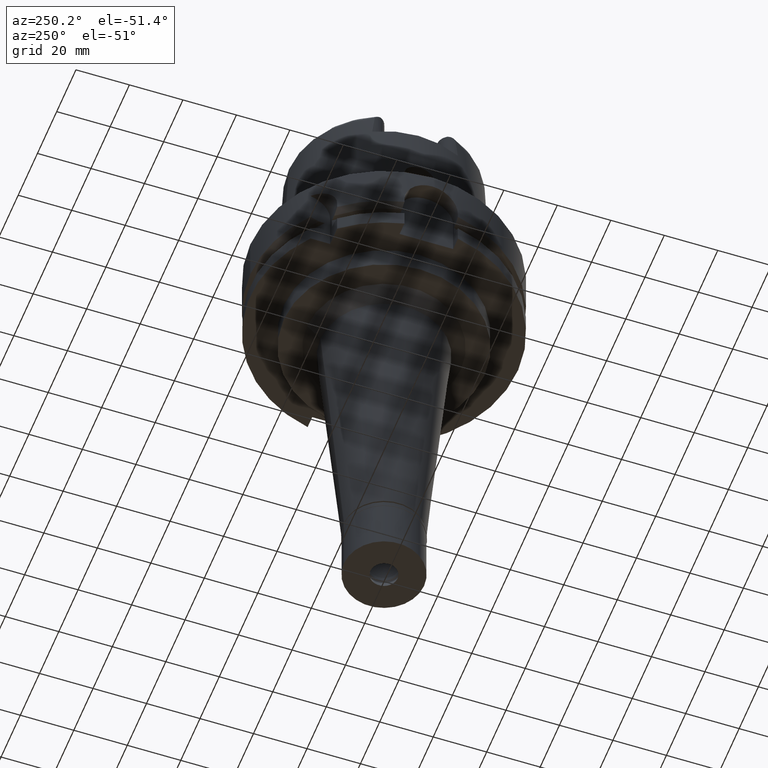
[diagram: clean part render]
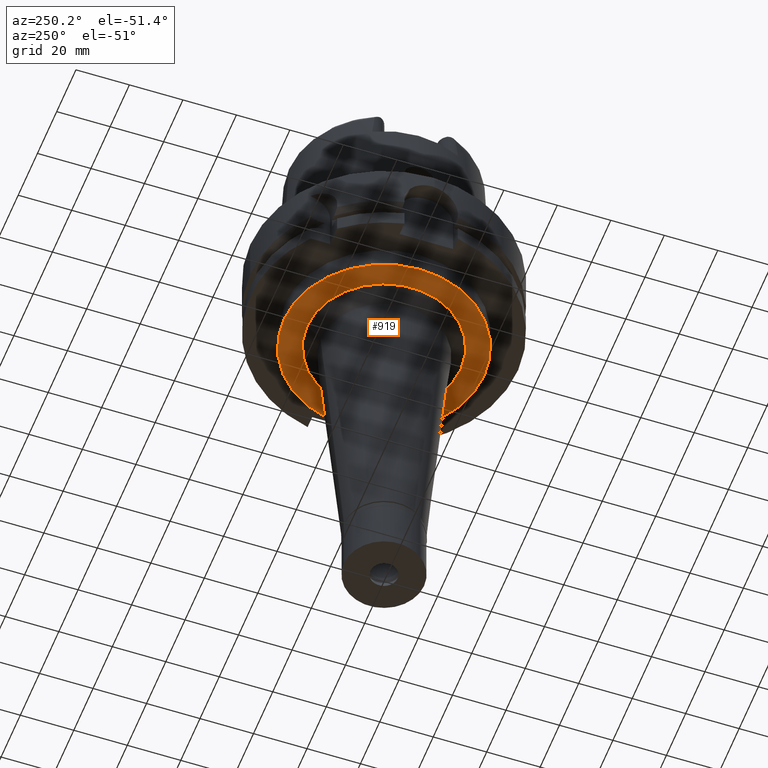
[diagram: same view with one face highlighted and labeled with its STEP entity id]
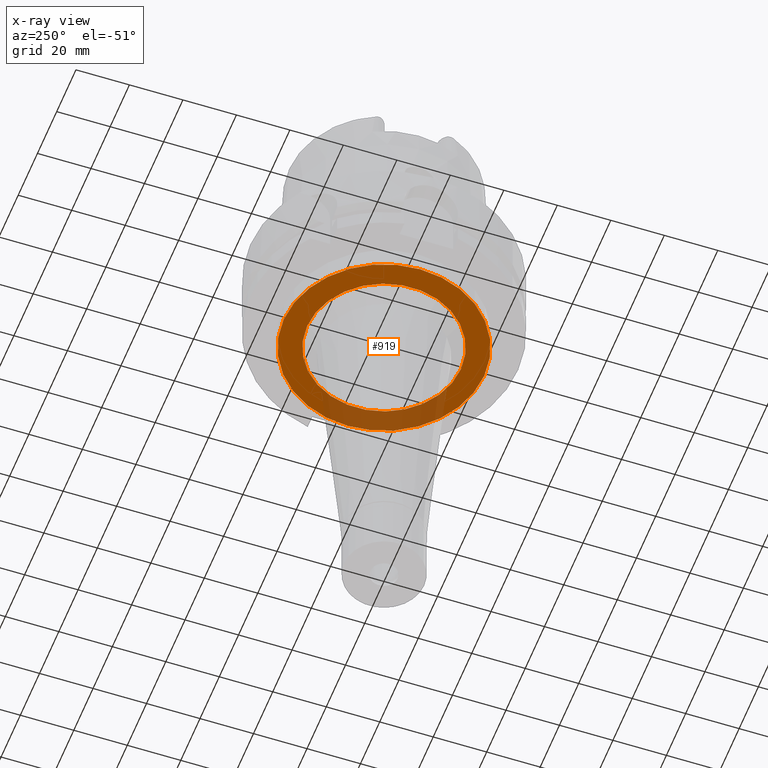
[diagram: x-ray of the same camera — body ghosted, the highlighted face saturated]
A machine part, auxiliary view. The second image highlights one B-rep face of the part: STEP entity #919.
The next image is the same camera in x-ray: the body ghosted, the highlighted face saturated — about 23% of this face is hidden behind the body in this view.
In plain terms, the highlighted planar face has unit normal (0, 0, 1).
Its self-contained STEP definition (entity closure, byte-faithful):
#69 = CARTESIAN_POINT ( 'NONE',  ( 0.0000000000000000000, -37.50000000000000000, -37.00000000000000000 ) ) ;
#156 = CARTESIAN_POINT ( 'NONE',  ( 0.0000000000000000000, 0.0000000000000000000, -37.00000000000000000 ) ) ;
#236 = CIRCLE ( 'NONE', #690, 37.50000000000000000 ) ;
#414 = EDGE_CURVE ( 'NONE', #3235, #5041, #2635, .T. ) ;
#450 = VERTEX_POINT ( 'NONE', #3993 ) ;
#618 = DIRECTION ( 'NONE',  ( 0.0000000000000000000, 0.0000000000000000000, 1.000000000000000000 ) ) ;
#690 = AXIS2_PLACEMENT_3D ( 'NONE', #5336, #618, #2334 ) ;
#733 = CARTESIAN_POINT ( 'NONE',  ( 0.0000000000000000000, 0.0000000000000000000, -37.00000000000000000 ) ) ;
#738 = DIRECTION ( 'NONE',  ( 0.0000000000000000000, -1.000000000000000000, 0.0000000000000000000 ) ) ;
#919 = ADVANCED_FACE ( 'NONE', ( #2719, #5426 ), #1107, .F. ) ;
#1107 = PLANE ( 'NONE',  #2718 ) ;
#1328 = AXIS2_PLACEMENT_3D ( 'NONE', #156, #1360, #4881 ) ;
#1360 = DIRECTION ( 'NONE',  ( 0.0000000000000000000, 0.0000000000000000000, -1.000000000000000000 ) ) ;
#1408 = DIRECTION ( 'NONE',  ( 1.000000000000000000, 0.0000000000000000000, 0.0000000000000000000 ) ) ;
#1488 = CARTESIAN_POINT ( 'NONE',  ( 0.0000000000000000000, 37.50000000000000000, -37.00000000000000000 ) ) ;
#1556 = VERTEX_POINT ( 'NONE', #2905 ) ;
#1628 = EDGE_LOOP ( 'NONE', ( #1905, #3453 ) ) ;
#1658 = DIRECTION ( 'NONE',  ( 0.0000000000000000000, 0.0000000000000000000, -1.000000000000000000 ) ) ;
#1824 = EDGE_CURVE ( 'NONE', #450, #1556, #3406, .T. ) ;
#1840 = CARTESIAN_POINT ( 'NONE',  ( 0.0000000000000000000, 0.0000000000000000000, -37.00000000000000000 ) ) ;
#1905 = ORIENTED_EDGE ( 'NONE', *, *, #414, .F. ) ;
#2334 = DIRECTION ( 'NONE',  ( 0.0000000000000000000, -1.000000000000000000, 0.0000000000000000000 ) ) ;
#2547 = AXIS2_PLACEMENT_3D ( 'NONE', #733, #4188, #3773 ) ;
#2635 = CIRCLE ( 'NONE', #2547, 37.50000000000000000 ) ;
#2718 = AXIS2_PLACEMENT_3D ( 'NONE', #1840, #3565, #1408 ) ;
#2719 = FACE_OUTER_BOUND ( 'NONE', #1628, .T. ) ;
#2896 = EDGE_CURVE ( 'NONE', #5041, #3235, #236, .T. ) ;
#2905 = CARTESIAN_POINT ( 'NONE',  ( 0.0000000000000000000, -28.76636408529999756, -37.00000000000000000 ) ) ;
#3199 = AXIS2_PLACEMENT_3D ( 'NONE', #4137, #1658, #738 ) ;
#3235 = VERTEX_POINT ( 'NONE', #1488 ) ;
#3288 = CIRCLE ( 'NONE', #3199, 28.76636408529999756 ) ;
#3345 = ORIENTED_EDGE ( 'NONE', *, *, #1824, .F. ) ;
#3385 = EDGE_LOOP ( 'NONE', ( #3345, #4945 ) ) ;
#3406 = CIRCLE ( 'NONE', #1328, 28.76636408529999756 ) ;
#3453 = ORIENTED_EDGE ( 'NONE', *, *, #2896, .F. ) ;
#3565 = DIRECTION ( 'NONE',  ( 0.0000000000000000000, 0.0000000000000000000, 1.000000000000000000 ) ) ;
#3773 = DIRECTION ( 'NONE',  ( 0.0000000000000000000, 1.000000000000000000, 0.0000000000000000000 ) ) ;
#3993 = CARTESIAN_POINT ( 'NONE',  ( 0.0000000000000000000, 28.76636408529999756, -37.00000000000000000 ) ) ;
#4137 = CARTESIAN_POINT ( 'NONE',  ( 0.0000000000000000000, 0.0000000000000000000, -37.00000000000000000 ) ) ;
#4188 = DIRECTION ( 'NONE',  ( 0.0000000000000000000, 0.0000000000000000000, 1.000000000000000000 ) ) ;
#4703 = EDGE_CURVE ( 'NONE', #1556, #450, #3288, .T. ) ;
#4881 = DIRECTION ( 'NONE',  ( 0.0000000000000000000, 1.000000000000000000, 0.0000000000000000000 ) ) ;
#4945 = ORIENTED_EDGE ( 'NONE', *, *, #4703, .F. ) ;
#5041 = VERTEX_POINT ( 'NONE', #69 ) ;
#5336 = CARTESIAN_POINT ( 'NONE',  ( 0.0000000000000000000, 0.0000000000000000000, -37.00000000000000000 ) ) ;
#5426 = FACE_BOUND ( 'NONE', #3385, .T. ) ;